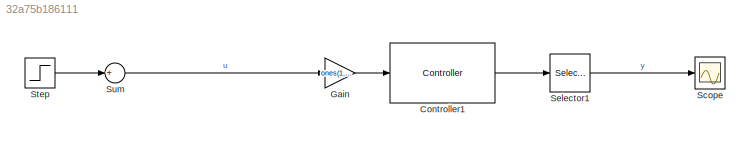
MODEL slx_32a75b186111
KIND model
CONFIG AbsTol = auto
CONFIG EnableMultiTasking = off
CONFIG FixedStep = auto
CONFIG MaxStep = 1e-3
CONFIG MinStep = auto
CONFIG RelTol = 1e-3
CONFIG SampleTimeConstraint = Unconstrained
CONFIG SolverName = VariableStepAuto
CONFIG StartTime = 0.0
CONFIG StopTime = 53
BLOCK [Reference] Controller1  REF=resonance_lib/Controller  (lib defined in slx_0762205c3b4b)
  Ports = [1, 1]
  SourceBlock = resonance_lib/Controller
BLOCK [Gain] Gain
  Gain = ones(1,5)
BLOCK [Scope] Scope
  Floating = off
  NumInputPorts = 1
  Ports = [1]
  ScopeSpecificationString = Simulink.scopes.TimeScopeBlockCfg('CurrentConfiguration', extmgr.ConfigurationSet(extmgr.Configuration('Core','General UI',true),extmgr.Configuration('Core','Source UI',true),extmgr.Configuration('Sources','WiredSimulink',true),extmgr.Configuration('Visuals','Time Domain',true,'SerializedDisplays',{struct('MinYLimReal','-12.02073','MaxYLimReal','11.69545','YLabelReal','','MinYLimMag','0.00000','Ma...<+1465ch>
BLOCK [Selector] Selector1
  IndexOptions = Select all,Index vector (dialog)
  Indices = [1 3],[1 2 3 5]
  InputPortWidth = 3
  NumberOfDimensions = 2
  OutputSizes = 1,1
  Ports = [1, 1]
BLOCK [Step] Step
  After = [1 -1 -0.00001 0.00001]
  SampleTime = 0
  Time = [0.0009 0.0019 17 117]
BLOCK [Sum] Sum
  Inputs = +
  Ports = [1, 1]
LINE Controller1:1 -> Selector1:1
LINE Gain:1 -> Controller1:1
LINE Selector1:1 -> Scope:1
LINE Step:1 -> Sum:1
LINE Sum:1 -> Gain:1
